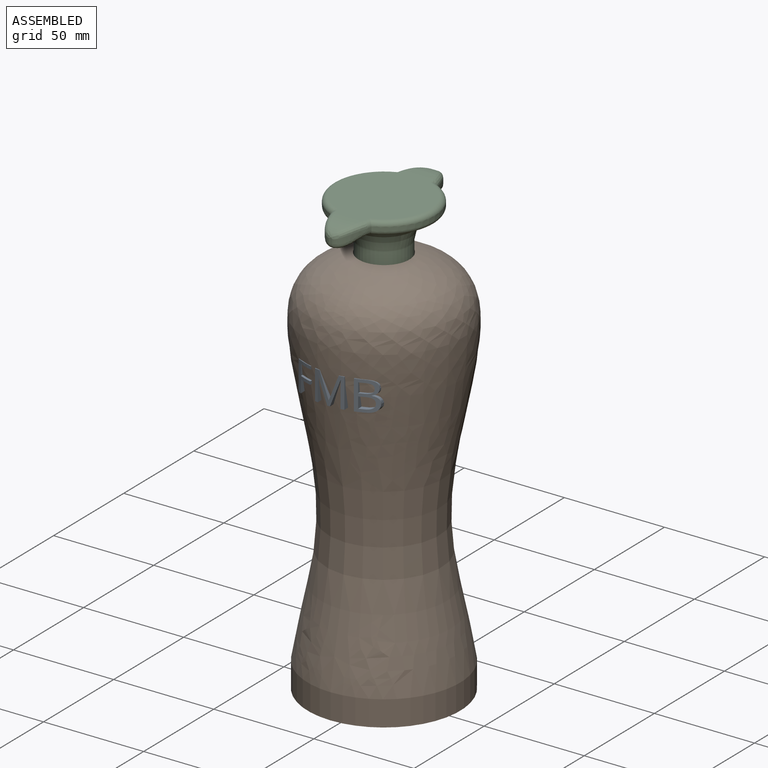
[diagram: assembled view]
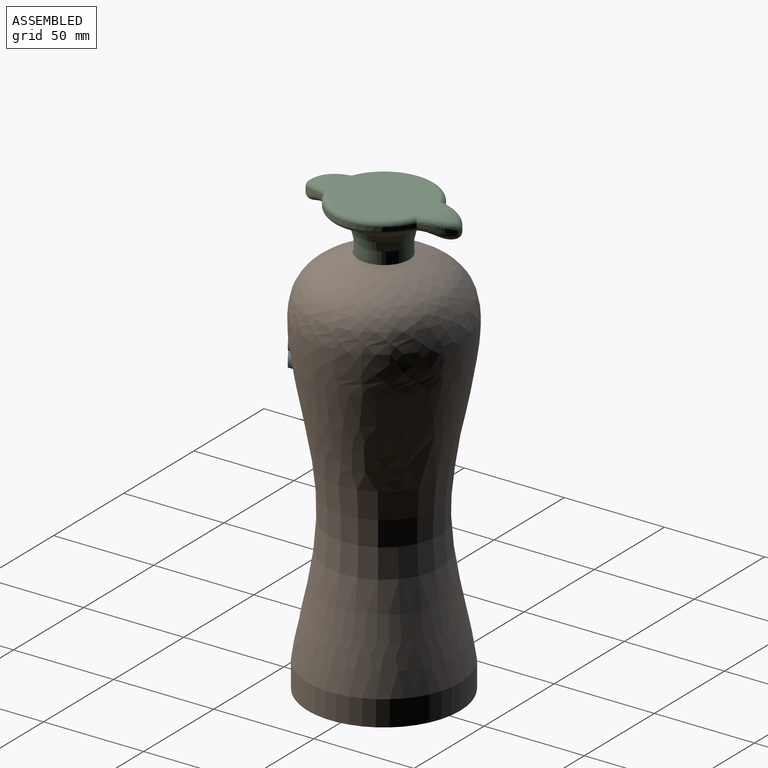
[diagram: assembled view, second angle]
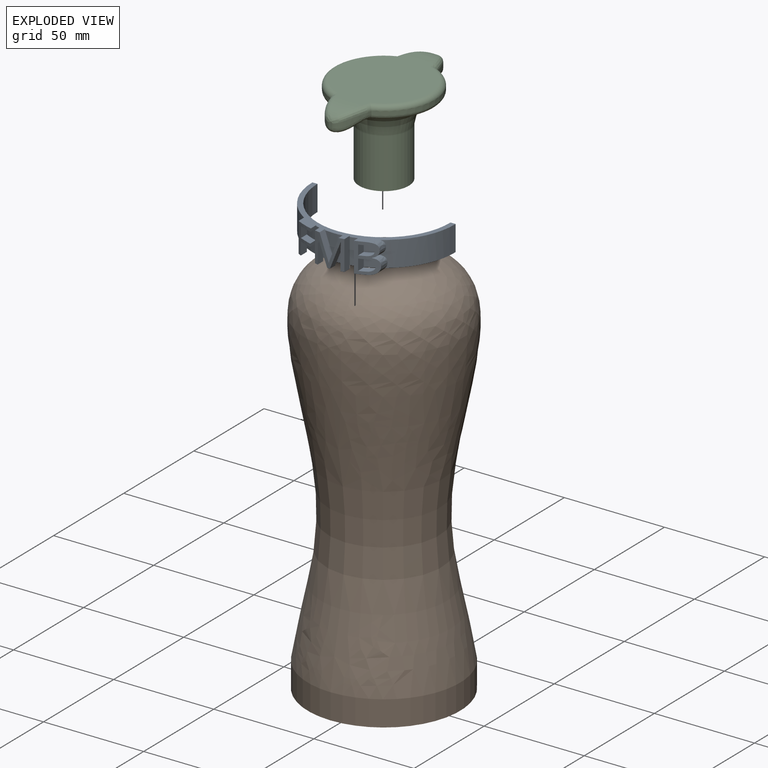
[diagram: exploded view]
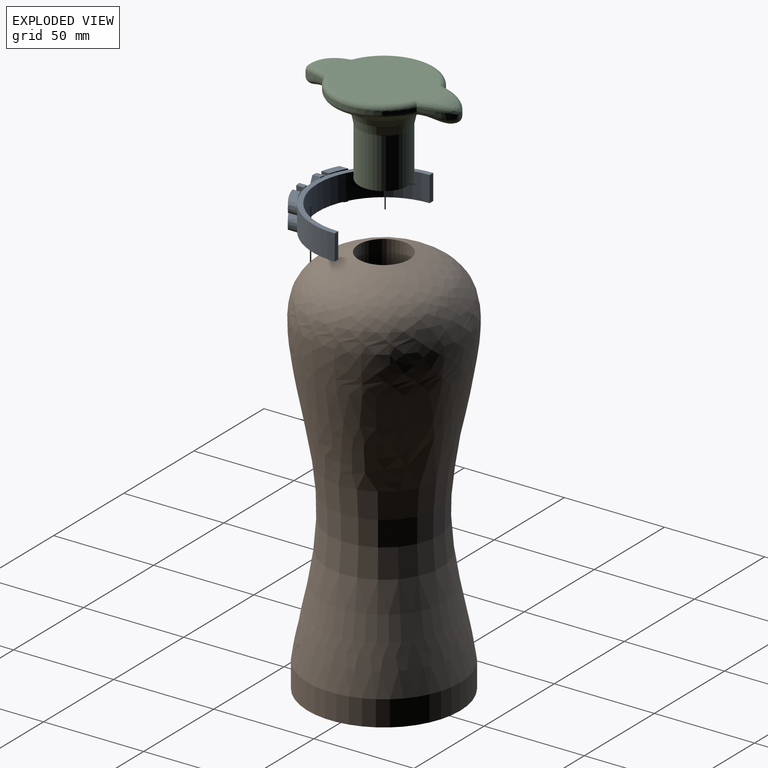
[diagram: exploded view, second angle]
ASSEMBLY  parts=3 mates=2
PART A: 79 faces, bbox 71.2x39.4x14.9 mm
  f0: cylinder r=35.56mm len=8.28mm, axis (0,0,-1), area 4.5mm2, adj f4,f5,f9,f78
  f1: plane 6.35x4.26mm, normal (1,0,0), area 27mm2, adj f6,f10,f11,f12,f39
  f2: plane 3.97x1.53mm, normal (1,0,0), area 6.1mm2, adj f6,f7,f12,f39
  f3: plane 5.43x4.26mm, normal (1,0,0), area 23.1mm2, adj f7,f8,f12,f39
  f4: plane 3.96x1.53mm, normal (1,0,0), area 6.1mm2, adj f0,f8,f9,f12,f39
  f5: plane 14.85x4.38mm, normal (-1,0,0), area 65mm2, adj f0,f9,f10,f11,f12,f13
  f6: plane 6.54x6.15mm, normal (0,0,-1), area 25.2mm2, adj f1,f2,f12,f39
  f7: plane 6.54x6.15mm, normal (0,0,1), area 25.2mm2, adj f2,f3,f12,f39
  f8: plane 6.65x6.55mm, normal (0,0,-1), area 26.8mm2, adj f3,f4,f12,f39
  f9: plane 8.28x7.64mm, normal (0,0,1), area 34.3mm2, adj f0,f4,f5,f12
  f10: plane 5.24x1.73mm, normal (0,0,-1), area 7.5mm2, adj f1,f5,f11,f12
  f11: cylinder r=35.56mm len=1.73mm, axis (0,0,-1), area 3.3mm2, adj f1,f5,f10,f77
  f12: cylinder r=39.37mm len=14.85mm, axis (0,0,-1), area 49.4mm2, adj f1,f2,f3,f4,f5,f6,f7,f8
  f13: cylinder r=35.56mm len=30.4mm, axis (0,0,1), area 462.9mm2, adj f5,f75,f77,f78
  f14: cylinder r=35.56mm len=2.77mm, axis (0,0,-1), area 1.4mm2, adj f20,f28,f29,f78
  f15: cylinder r=35.56mm len=2.79mm, axis (0,0,-1), area 1.4mm2, adj f21,f31,f32,f78
  f16: cylinder r=35.56mm len=1.73mm, axis (0,0,-1), area 2.9mm2, adj f19,f20,f27,f77
  f17: cylinder r=35.56mm len=2.66mm, axis (0,0,-1), area 3.3mm2, adj f24,f25,f35,f77
  f18: extruded ~3.87x3.57mm, area 13.8mm2, adj f19,f26,f37,f73
  f19: plane 9.57x3.85mm, normal (-1,0,0), area 36.8mm2, adj f16,f18,f27,f37,f73
  f20: plane 14.85x3.88mm, normal (1,0,0), area 57.6mm2, adj f14,f16,f27,f28,f37,f41
  f21: plane 14.85x3.89mm, normal (-1,0,0), area 57.8mm2, adj f15,f32,f33,f36,f37,f39
  f22: plane 9.44x3.86mm, normal (1,0,0), area 36.5mm2, adj f23,f33,f36,f37,f38
  f23: extruded ~3.89x3.72mm, area 14.4mm2, adj f22,f34,f37,f38
  f24: plane 3.83x1.39mm, normal (0,0,-1), area 5.3mm2, adj f17,f25,f35,f37
  f25: plane 13.17x5.11mm, normal (0.93,0,-0.36), area 53.9mm2, adj f17,f24,f26,f37,f73
  f26: plane 3.86x0.08mm, normal (0,0,-1), area 0.3mm2, adj f18,f25,f37,f73
  f27: plane 4.15x1.73mm, normal (0,0,-1), area 6.7mm2, adj f16,f19,f20,f37
  f28: plane 4.26x2.58mm, normal (0,0,1), area 9.9mm2, adj f14,f20,f29,f37
  f29: plane 12.27x4.76mm, normal (-0.93,0,0.36), area 50.1mm2, adj f14,f28,f30,f37,f40
  f30: plane 3.81x0.08mm, normal (0,0,1), area 0.3mm2, adj f29,f31,f37,f40
  f31: plane 12.27x4.73mm, normal (0.93,0,0.36), area 50.1mm2, adj f15,f30,f32,f37,f40
  f32: plane 4.32x2.6mm, normal (0,0,1), area 10.1mm2, adj f15,f21,f31,f37
  f33: plane 4.18x1.6mm, normal (0,0,-1), area 6.2mm2, adj f21,f22,f36,f37
  f34: plane 3.88x0.08mm, normal (0,0,-1), area 0.3mm2, adj f23,f35,f37,f38
  f35: plane 13.2x5.08mm, normal (-0.93,0,-0.36), area 54mm2, adj f17,f24,f34,f37,f38
  f36: cylinder r=35.56mm len=1.65mm, axis (0,0,-1), area 2.7mm2, adj f21,f22,f33,f77
  f37: cylinder r=39.37mm len=14.85mm, axis (0,0,-1), area 95mm2, adj f18,f19,f20,f21,f22,f23,f24,f25
  f38: cylinder r=35.56mm len=11.51mm, axis (0,0,1), area 25mm2, adj f22,f23,f34,f35,f77
  f39: cylinder r=35.56mm len=12.7mm, axis (0,0,1), area 104.7mm2, adj f1,f2,f3,f4,f6,f7,f8,f21
  f40: cylinder r=35.56mm len=11.75mm, axis (0,0,1), area 54.3mm2, adj f29,f30,f31,f78
  f41: cylinder r=35.56mm len=12.7mm, axis (0,0,1), area 53.5mm2, adj f20,f53,f77,f78
  f42: cylinder r=35.56mm len=7.71mm, axis (0,0,-1), area 3.7mm2, adj f43,f44,f53,f78
  f43: plane 5.66x4.19mm, normal (0,0,1), area 17.1mm2, adj f42,f44,f53,f55
  f44: extruded ~6.57x4.27mm, area 19.1mm2, adj f42,f43,f45,f55,f72
  f45: extruded ~5.38x2.79mm, area 14.7mm2, adj f44,f46,f55,f72
  f46: extruded ~5.04x2.18mm, area 10.7mm2, adj f45,f47,f55,f72
  f47: extruded ~5.71x2.15mm, area 10.9mm2, adj f46,f48,f55,f72
  f48: plane 4.34x0.1mm, normal (1,0,0), area 0.4mm2, adj f47,f49,f55,f72
  f49: extruded ~6.59x3.55mm, area 24.6mm2, adj f48,f50,f55,f72
  f50: extruded ~5.47x3.11mm, area 16.1mm2, adj f49,f51,f54,f55,f72
  f51: extruded ~6.46x3.76mm, area 17.5mm2, adj f50,f52,f54,f55
  f52: plane 6.15x5.18mm, normal (0,0,-1), area 21.2mm2, adj f51,f53,f54,f55
  f53: plane 14.85x3.99mm, normal (-1,0,0), area 59.2mm2, adj f41,f42,f43,f52,f54,f55
  f54: cylinder r=35.56mm len=9.46mm, axis (0,0,-1), area 14.5mm2, adj f50,f51,f52,f53,f56,f57,f58,f77
  f55: cylinder r=39.37mm len=14.85mm, axis (0,0,-1), area 82.5mm2, adj f43,f44,f45,f46,f47,f48,f49,f50
  f56: plane 5.56x4.05mm, normal (1,0,0), area 22.5mm2, adj f54,f55,f57,f62,f71
  f57: plane 5.42x3.1mm, normal (0,0,1), area 12.8mm2, adj f54,f55,f56,f58
  f58: extruded ~5.71x2.71mm, area 12.2mm2, adj f54,f55,f57,f59,f71
  f59: extruded ~4.97x2.18mm, area 10.9mm2, adj f55,f58,f60,f71
  f60: extruded ~4.98x2.03mm, area 10.3mm2, adj f55,f59,f61,f71
  f61: extruded ~5.76x2.83mm, area 12.6mm2, adj f55,f60,f62,f71
  f62: plane 5.35x2.96mm, normal (0,0,-1), area 12.2mm2, adj f55,f56,f61,f71
  f63: plane 4.86x4.05mm, normal (1,0,0), area 19.7mm2, adj f55,f68,f69,f70
  f64: extruded ~5.69x2.84mm, area 12.5mm2, adj f55,f65,f68,f70
  f65: extruded ~4.91x1.8mm, area 9.3mm2, adj f55,f64,f66,f70
  f66: extruded ~4.86x1.93mm, area 9.6mm2, adj f55,f65,f67,f70
  f67: extruded ~5.62x2.63mm, area 11.7mm2, adj f55,f66,f69,f70
  f68: plane 5.15x2.54mm, normal (0,0,-1), area 10.4mm2, adj f55,f63,f64,f70
  f69: plane 5.29x2.84mm, normal (0,0,1), area 11.7mm2, adj f55,f63,f67,f70
  f70: cylinder r=35.56mm len=6.28mm, axis (0,0,1), area 31.1mm2, adj f63,f64,f65,f66,f67,f68,f69
  f71: cylinder r=35.56mm len=6.71mm, axis (0,0,1), area 37.2mm2, adj f56,f58,f59,f60,f61,f62,f77
  f72: cylinder r=35.56mm len=30.7mm, axis (0,0,1), area 431.9mm2, adj f44,f45,f46,f47,f48,f49,f50,f76
  f73: cylinder r=35.56mm len=11.49mm, axis (0,0,1), area 25.2mm2, adj f18,f19,f25,f26,f77
  f74: cylinder r=33.02mm len=66.04mm, axis (0,0,1), area 1317.4mm2, adj f75,f76,f77,f78
  f75: plane 12.7x2.54mm, normal (0,1,0), area 32.3mm2, adj f13,f74,f77,f78
  f76: plane 12.7x2.54mm, normal (0,1,0), area 32.3mm2, adj f72,f74,f77,f78
  f77: plane 71.12x35.56mm, normal (0,0,-1), area 273.6mm2, adj f11,f13,f16,f17,f36,f38,f39,f41
  f78: plane 71.12x35.56mm, normal (0,0,1), area 273.6mm2, adj f0,f13,f14,f15,f39,f40,f41,f42
PART B: 5 faces, bbox 79.2x196.9x79.2 mm
  f0: plane 25.4x25.4mm, normal (0,1,0), area 506.7mm2, adj f1
  f1: cylinder r=12.7mm len=25.4mm, axis (0,1,0), area 1520.1mm2, adj f0,f2
  f2: revolved ~184.15x79.22mm, area 40518.2mm2, adj f1,f3
  f3: cylinder r=38.1mm len=76.2mm, axis (0,1,0), area 3040.2mm2, adj f2,f4
  f4: plane 76.2x76.2mm, normal (0,-1,0), area 4560.4mm2, adj f3
PART C: 31 faces, bbox 76.3x70.5x44.5 mm
  f0: revolved ~70.49x70.49mm, area 2095mm2, adj f22,f23,f24,f25,f26,f27,f28,f29
  f1: cylinder r=12.45mm len=24.89mm, axis (0,0,1), area 1940.6mm2, adj f2,f30
  f2: plane 24.89x24.89mm, normal (0,0,-1), area 486.6mm2, adj f1
  f3: extruded ~14.77x9.29mm, area 40.5mm2, adj f4,f10,f19,f21,f27,f29
  f4: cylinder r=38.1mm len=2.27mm, axis (0,0,-1), area 3.5mm2, adj f3,f5,f19,f27
  f5: extruded ~14.77x9.29mm, area 40.5mm2, adj f4,f6,f17,f19,f25,f27
  f6: cylinder r=25.4mm len=46.66mm, axis (0,0,-1), area 90.6mm2, adj f5,f7,f16,f22,f23,f25
  f7: extruded ~14.77x9.29mm, area 40.5mm2, adj f6,f8,f14,f15,f22,f24
  f8: cylinder r=38.1mm len=2.79mm, axis (0,0,-1), area 3.9mm2, adj f7,f9,f15,f24
  f9: extruded ~14.77x9.29mm, area 40.5mm2, adj f8,f10,f15,f18,f24,f26
  f10: cylinder r=25.4mm len=46.66mm, axis (0,0,-1), area 90.6mm2, adj f3,f9,f20,f26,f28,f29
  f11: revolved ~21.14x13.27mm, area 127.7mm2, adj f13,f15
  f12: revolved ~21.15x13.28mm, area 113mm2, adj f13,f19
  f13: plane 50.8x45.72mm, normal (0,0,1), area 1719.5mm2, adj f11,f12,f14,f16,f17,f18,f20,f21
  f14: bspline ~7.01x4.17mm, area 9.8mm2, adj f7,f13,f15,f16
  f15: bspline ~19.34x14.33mm, area 114.5mm2, adj f7,f8,f9,f11,f14,f18
  f16: torus R=22.86mm, axis (0,0,1), area 232.5mm2, adj f6,f13,f14,f17
  f17: bspline ~9.36x4.67mm, area 9.8mm2, adj f5,f13,f16,f19
  f18: bspline ~9.36x4.67mm, area 9.8mm2, adj f9,f13,f15,f20
  f19: bspline ~19.23x14mm, area 114.9mm2, adj f3,f4,f5,f12,f17,f21
  f20: torus R=22.86mm, axis (0,0,1), area 232.5mm2, adj f10,f13,f18,f21
  f21: bspline ~7.01x4.17mm, area 9.8mm2, adj f3,f13,f19,f20
  f22: bspline ~17.2x10.47mm, area 77.2mm2, adj f0,f6,f7,f23,f24
  f23: torus R=22.86mm, axis (0,0,1), area 211.2mm2, adj f0,f6,f22,f25
  f24: torus R=35.56mm, axis (0,0,1), area 5.8mm2, adj f0,f7,f8,f9,f22,f26
  f25: bspline ~17.3x10.48mm, area 77.2mm2, adj f0,f5,f6,f23,f27
  f26: bspline ~17.3x10.48mm, area 77.2mm2, adj f0,f9,f10,f24,f28
  f27: torus R=35.56mm, axis (0,0,1), area 5.8mm2, adj f0,f3,f4,f5,f25,f29
  f28: torus R=22.86mm, axis (0,0,1), area 211.2mm2, adj f0,f10,f26,f29
  f29: bspline ~17.2x10.47mm, area 77.2mm2, adj f0,f3,f10,f27,f28
  f30: torus R=14.99mm, axis (0,0,1), area 36.6mm2, adj f0,f1
PLACE A rot(axis=(0,0,1),0.5deg) t=(-15.18,-12.83,156.7)mm
PLACE B rot(axis=(0.58,0.58,0.58),120deg) t=(0,-0.67,0)mm
PLACE C rot(axis=(0,0,-1),90deg) t=(0,0,196.85)mm
MATE cylindrical A.f0 <-> B.f1  axis (0,0,1) through (0,0,156.7)mm
MATE fastened C.f1 <-> B.f1  axis (0,0,-1) through (0,0,177.8)mm
